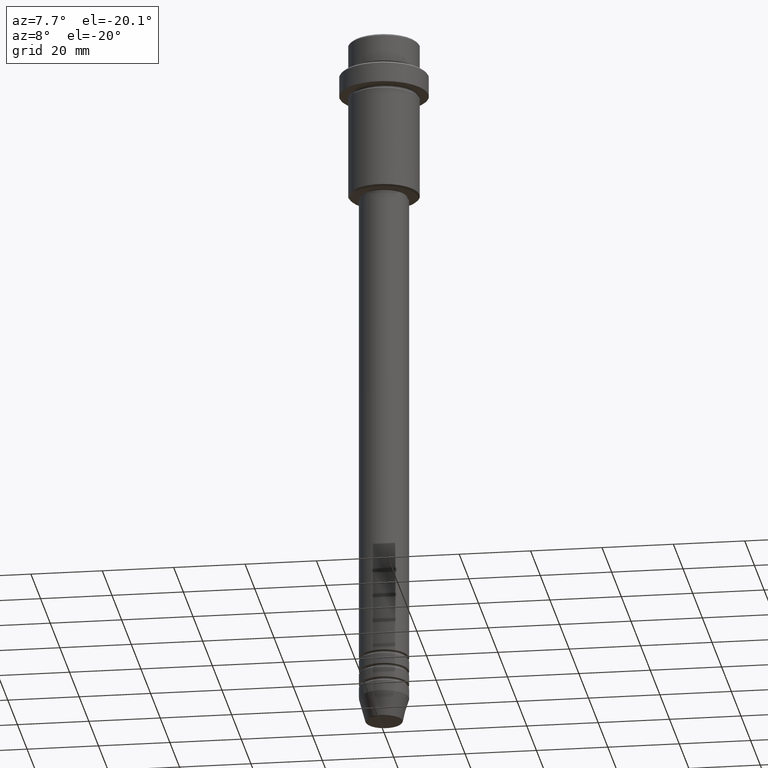
[diagram: clean part render]
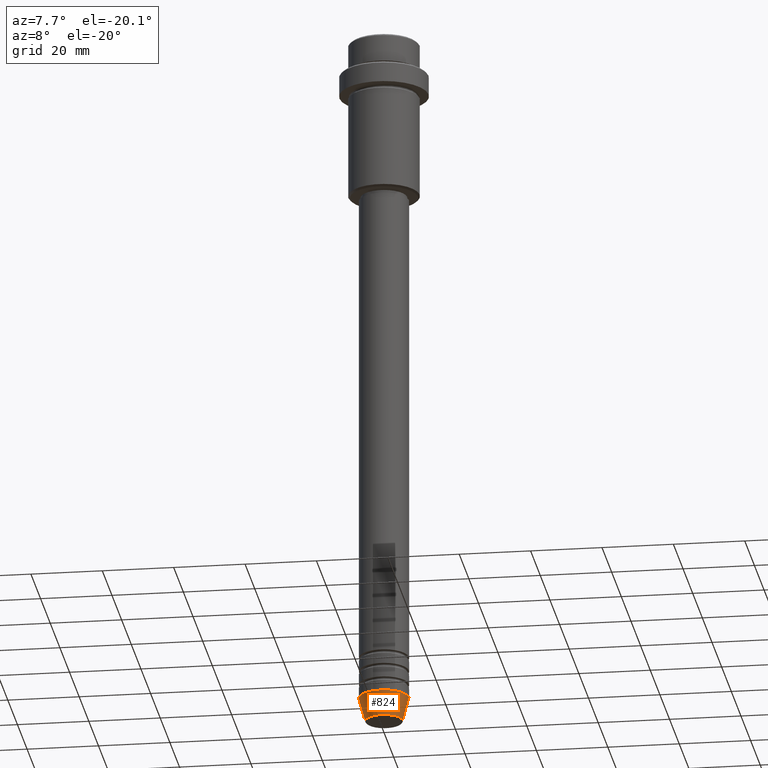
[diagram: same view with one face highlighted and labeled with its STEP entity id]
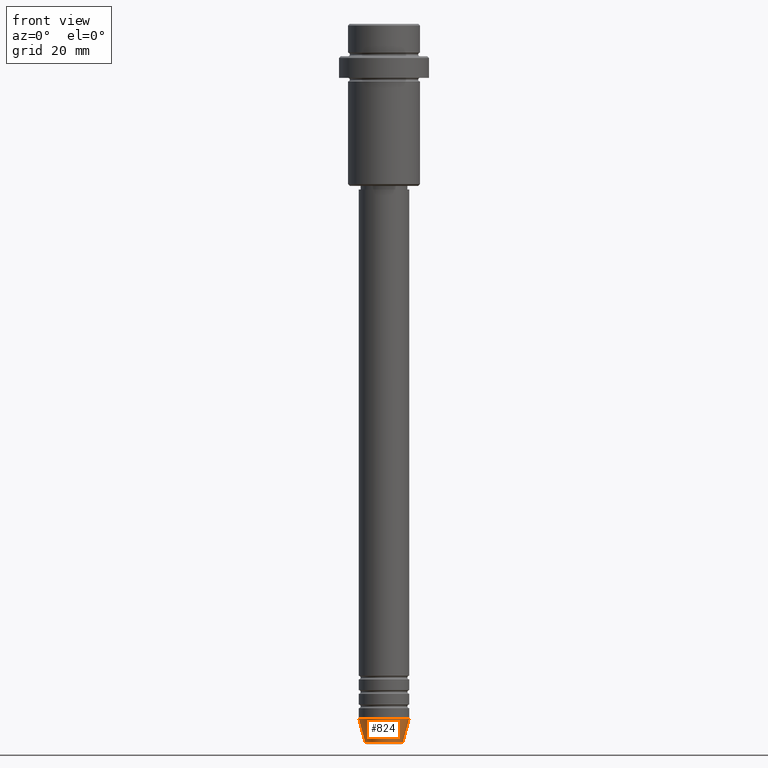
[diagram: same view with one face highlighted and labeled with its STEP entity id]
A machine part, auxiliary view. The second image highlights one B-rep face of the part: STEP entity #824.
A second angle (front view) of the same face is appended — the face is thin or edge-on in the first view.
In plain terms, the highlighted conical surface has half-angle 15 deg.
Its self-contained STEP definition (entity closure, byte-faithful):
#34 = CARTESIAN_POINT ( 'NONE',  ( -5.223655072137191269, 7.484830028987061160E-16, -199.6294095225512706 ) ) ;
#72 = EDGE_CURVE ( 'NONE', #1009, #1181, #869, .T. ) ;
#206 = AXIS2_PLACEMENT_3D ( 'NONE', #1191, #1417, #1075 ) ;
#273 = ORIENTED_EDGE ( 'NONE', *, *, #1149, .F. ) ;
#281 = DIRECTION ( 'NONE',  ( 1.000000000000000000, 0.000000000000000000, 0.000000000000000000 ) ) ;
#367 = CIRCLE ( 'NONE', #206, 5.223655072137191269 ) ;
#370 = CARTESIAN_POINT ( 'NONE',  ( 0.000000000000000000, 0.000000000000000000, -193.0000000000000000 ) ) ;
#382 = DIRECTION ( 'NONE',  ( -0.000000000000000000, -0.000000000000000000, 1.000000000000000000 ) ) ;
#495 = CONICAL_SURFACE ( 'NONE', #1286, 7.000000000000000000, 0.2617993877991501295 ) ;
#510 = ORIENTED_EDGE ( 'NONE', *, *, #72, .T. ) ;
#558 = VERTEX_POINT ( 'NONE', #994 ) ;
#655 = AXIS2_PLACEMENT_3D ( 'NONE', #370, #382, #281 ) ;
#707 = DIRECTION ( 'NONE',  ( -0.2588190451025214056, 3.169619151431772953E-17, 0.9659258262890680902 ) ) ;
#730 = VERTEX_POINT ( 'NONE', #34 ) ;
#761 = DIRECTION ( 'NONE',  ( 0.2588190451025214056, 0.000000000000000000, 0.9659258262890680902 ) ) ;
#824 = ADVANCED_FACE ( 'NONE', ( #826 ), #495, .T. ) ;
#826 = FACE_OUTER_BOUND ( 'NONE', #1192, .T. ) ;
#869 = LINE ( 'NONE', #1291, #901 ) ;
#888 = CIRCLE ( 'NONE', #655, 7.000000000000000000 ) ;
#901 = VECTOR ( 'NONE', #761, 1000.000000000000000 ) ;
#915 = ORIENTED_EDGE ( 'NONE', *, *, #1258, .T. ) ;
#924 = CARTESIAN_POINT ( 'NONE',  ( 0.000000000000000000, 0.000000000000000000, -193.0000000000000000 ) ) ;
#953 = DIRECTION ( 'NONE',  ( -0.000000000000000000, -0.000000000000000000, 1.000000000000000000 ) ) ;
#954 = CARTESIAN_POINT ( 'NONE',  ( 5.223655072137191269, 0.000000000000000000, -199.6294095225512706 ) ) ;
#994 = CARTESIAN_POINT ( 'NONE',  ( -7.000000000000000000, 8.572527594031473190E-16, -193.0000000000000000 ) ) ;
#1009 = VERTEX_POINT ( 'NONE', #954 ) ;
#1075 = DIRECTION ( 'NONE',  ( 1.000000000000000000, 0.000000000000000000, 0.000000000000000000 ) ) ;
#1095 = CARTESIAN_POINT ( 'NONE',  ( 7.000000000000000000, 0.000000000000000000, -193.0000000000000000 ) ) ;
#1124 = VECTOR ( 'NONE', #707, 1000.000000000000000 ) ;
#1135 = DIRECTION ( 'NONE',  ( 1.000000000000000000, 0.000000000000000000, 0.000000000000000000 ) ) ;
#1149 = EDGE_CURVE ( 'NONE', #558, #1181, #888, .T. ) ;
#1179 = EDGE_CURVE ( 'NONE', #730, #558, #1353, .T. ) ;
#1181 = VERTEX_POINT ( 'NONE', #1095 ) ;
#1191 = CARTESIAN_POINT ( 'NONE',  ( 0.000000000000000000, 0.000000000000000000, -199.6294095225512706 ) ) ;
#1192 = EDGE_LOOP ( 'NONE', ( #1275, #915, #510, #273 ) ) ;
#1247 = CARTESIAN_POINT ( 'NONE',  ( -7.000000000000000000, 8.572527594031473190E-16, -193.0000000000000000 ) ) ;
#1258 = EDGE_CURVE ( 'NONE', #730, #1009, #367, .T. ) ;
#1275 = ORIENTED_EDGE ( 'NONE', *, *, #1179, .F. ) ;
#1286 = AXIS2_PLACEMENT_3D ( 'NONE', #924, #953, #1135 ) ;
#1291 = CARTESIAN_POINT ( 'NONE',  ( 7.000000000000000000, 0.000000000000000000, -193.0000000000000000 ) ) ;
#1353 = LINE ( 'NONE', #1247, #1124 ) ;
#1417 = DIRECTION ( 'NONE',  ( -0.000000000000000000, -0.000000000000000000, 1.000000000000000000 ) ) ;